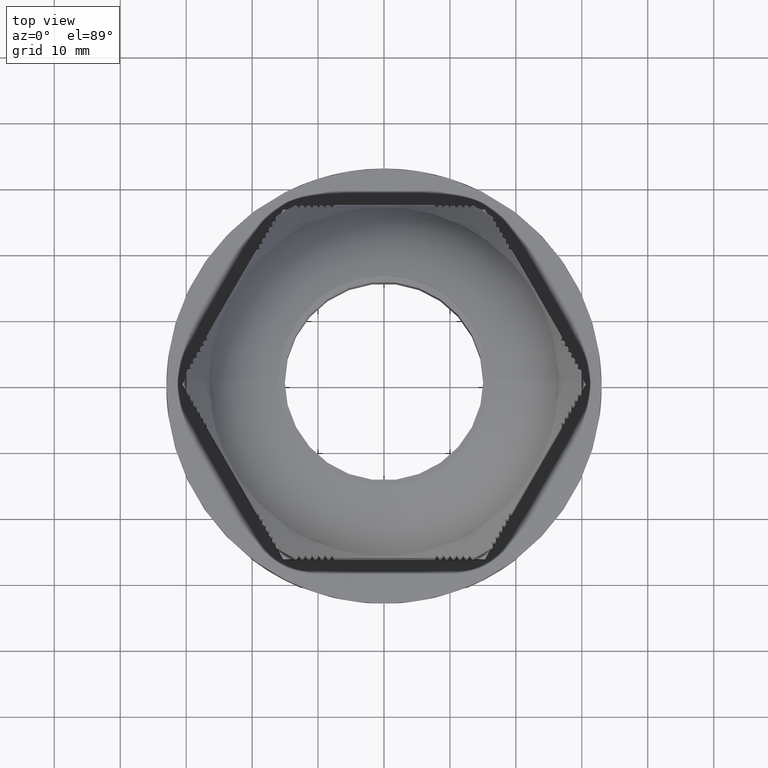
[diagram: clean part render]
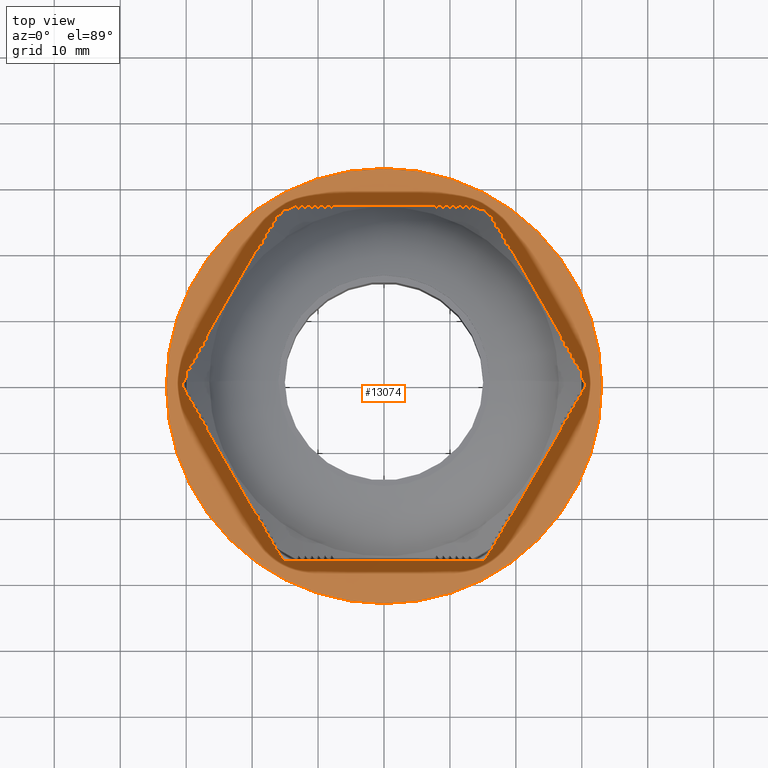
[diagram: same view with one face highlighted and labeled with its STEP entity id]
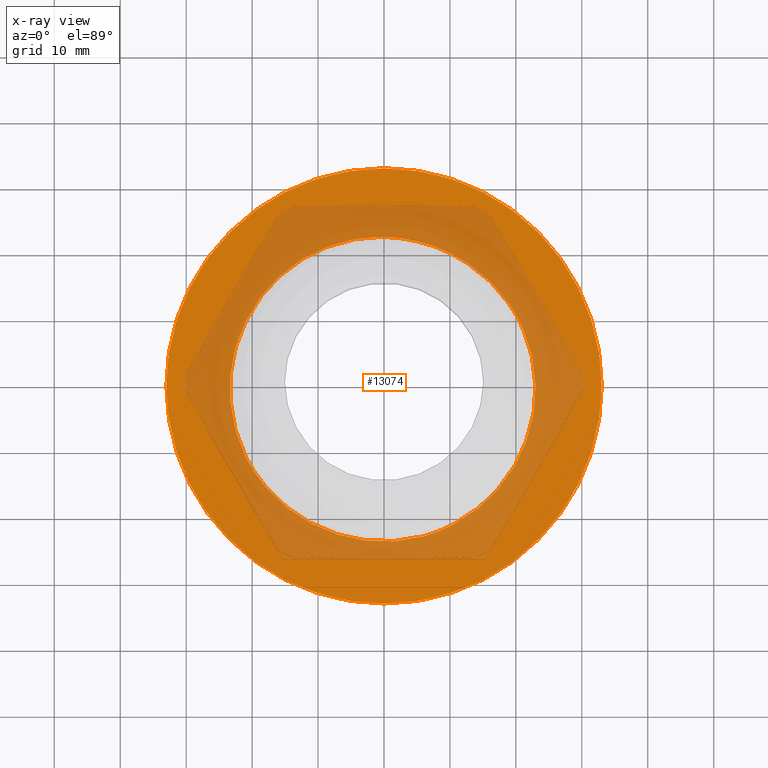
[diagram: x-ray of the same camera — body ghosted, the highlighted face saturated]
A machine part, top view. The second image highlights one B-rep face of the part: STEP entity #13074.
The next image is the same camera in x-ray: the body ghosted, the highlighted face saturated — about 47% of this face is hidden behind the body in this view.
In plain terms, the highlighted planar face has unit normal (0, 0, 1).
Its self-contained STEP definition (entity closure, byte-faithful):
#61 = EDGE_CURVE ( 'NONE', #1024, #7851, #20458, .T. ) ;
#69 = EDGE_CURVE ( 'NONE', #7851, #24904, #9485, .T. ) ;
#1024 = VERTEX_POINT ( 'NONE', #19559 ) ;
#3321 = DIRECTION ( 'NONE',  ( 1.000000000000000000, 0.0000000000000000000, 0.0000000000000000000 ) ) ;
#3349 = CARTESIAN_POINT ( 'NONE',  ( -3.469446951953614200E-015, 0.0000000000000000000, 12.51966510091093100 ) ) ;
#3351 = DIRECTION ( 'NONE',  ( -0.0000000000000000000, -0.0000000000000000000, -1.000000000000000000 ) ) ;
#3770 = VERTEX_POINT ( 'NONE', #16687 ) ;
#3778 = VERTEX_POINT ( 'NONE', #16644 ) ;
#6221 = FACE_OUTER_BOUND ( 'NONE', #20127, .T. ) ;
#6222 = FACE_BOUND ( 'NONE', #20113, .T. ) ;
#6223 = PLANE ( 'NONE',  #8928 ) ;
#6224 = CARTESIAN_POINT ( 'NONE',  ( 34.64101615137756300, 3.469446951953614200E-015, 12.51966510091093100 ) ) ;
#6225 = DIRECTION ( 'NONE',  ( 0.0000000000000000000, 0.0000000000000000000, 1.000000000000000000 ) ) ;
#6226 = DIRECTION ( 'NONE',  ( 1.000000000000000000, 0.0000000000000000000, -0.0000000000000000000 ) ) ;
#7822 = B_SPLINE_CURVE_WITH_KNOTS ( 'NONE', 3,
 ( #23539, #23534, #23542, #23519, #23558, #23535, #23521, #23522, #23525, #23538, #23562, #23604, #23585, #23592, #23577, #23591, #23596, #23578, #23583, #23566, #23581, #23605, #23597, #23579, #23611, #23563, #23601, #23593, #23580, #23576, #23582, #23607, #23594, #23618, #23588, #23606, #23600, #23586, #23612, #23595, #23589, #23584, #23587, #23575, #23569, #23603 ),
 .UNSPECIFIED., .F., .F.,
 ( 4, 2, 2, 2, 2, 2, 2, 2, 2, 2, 2, 2, 2, 2, 2, 2, 2, 2, 2, 2, 2, 2, 4 ),
 ( 1.734723475976806900E-018, 0.001655241441134451200, 0.003310482882268900700, 0.006620965764537789300, 0.009931448646806678400, 0.01158669008794112500, 0.01324193152907557500, 0.01655241441134447400, 0.01820765585247892400, 0.01986289729361337400, 0.02317338017588227100, 0.02482862161701672100, 0.02648386305815117100, 0.02979434594042006800, 0.03310482882268896800, 0.03476007026382341900, 0.03641531170495786900, 0.03972579458722677600, 0.04303627746949567600, 0.04634676035176458300, 0.04800200179289903400, 0.04965724323403349100, 0.05296772611630239800 ),
 .UNSPECIFIED. ) ;
#7823 = B_SPLINE_CURVE_WITH_KNOTS ( 'NONE', 3,
 ( #23647, #23631, #23661, #23667, #23658, #23630, #23632, #23640, #23644, #23645, #23653, #23660, #23662, #23663, #23664, #23718, #23690, #23709, #23703, #23686, #23716, #23700 ),
 .UNSPECIFIED., .F., .F.,
 ( 4, 2, 2, 2, 2, 2, 2, 2, 2, 2, 4 ),
 ( 0.0000000000000000000, 0.004003597394779144500, 0.008007194789558287300, 0.01000899348694786100, 0.01201079218433743200, 0.01601438957911658100, 0.01801618827650615700, 0.02001798697389573300, 0.02402158436867488400, 0.02802518176345403900, 0.03202877915823319100 ),
 .UNSPECIFIED. ) ;
#7851 = VERTEX_POINT ( 'NONE', #11117 ) ;
#8928 = AXIS2_PLACEMENT_3D ( 'NONE', #6224, #6225, #6226 ) ;
#9271 = AXIS2_PLACEMENT_3D ( 'NONE', #3349, #3351, #3321 ) ;
#9307 = CIRCLE ( 'NONE', #9271, 33.00000000000000000 ) ;
#9470 = AXIS2_PLACEMENT_3D ( 'NONE', #20734, #20745, #20735 ) ;
#9485 = CIRCLE ( 'NONE', #9470, 22.49999999999999300 ) ;
#11117 = CARTESIAN_POINT ( 'NONE',  ( 5.006511656376244600, 21.93592580755524000, 12.51966510091091900 ) ) ;
#13074 = ADVANCED_FACE ( 'NONE', ( #6221, #6222 ), #6223, .T. ) ;
#13343 = EDGE_CURVE ( 'NONE', #3778, #3770, #9307, .T. ) ;
#14101 = EDGE_CURVE ( 'NONE', #3770, #3778, #23839, .T. ) ;
#16644 = CARTESIAN_POINT ( 'NONE',  ( -33.00000000000000000, 4.041334437186266200E-015, 12.51966510091093100 ) ) ;
#16687 = CARTESIAN_POINT ( 'NONE',  ( 33.00000000000000000, 0.0000000000000000000, 12.51966510091093100 ) ) ;
#19044 = EDGE_CURVE ( 'NONE', #24904, #24890, #7822, .T. ) ;
#19088 = EDGE_CURVE ( 'NONE', #24890, #1024, #7823, .T. ) ;
#19559 = CARTESIAN_POINT ( 'NONE',  ( -20.91995311601898100, -10.92316628197005300, 12.51966510091091100 ) ) ;
#19875 = ORIENTED_EDGE ( 'NONE', *, *, #69, .T. ) ;
#19882 = ORIENTED_EDGE ( 'NONE', *, *, #14101, .F. ) ;
#19895 = ORIENTED_EDGE ( 'NONE', *, *, #19088, .T. ) ;
#19898 = ORIENTED_EDGE ( 'NONE', *, *, #13343, .F. ) ;
#19905 = ORIENTED_EDGE ( 'NONE', *, *, #19044, .T. ) ;
#19913 = ORIENTED_EDGE ( 'NONE', *, *, #61, .T. ) ;
#20113 = EDGE_LOOP ( 'NONE', ( #19905, #19895, #19913, #19875 ) ) ;
#20127 = EDGE_LOOP ( 'NONE', ( #19882, #19898 ) ) ;
#20458 = B_SPLINE_CURVE_WITH_KNOTS ( 'NONE', 3,
 ( #20654, #20655, #20678, #20657, #20656, #20659, #20664, #20660, #20668, #20661, #20669, #20726, #20684, #20703, #20708, #20691, #20695, #20732, #20717, #20679, #20724, #20699, #20687, #20723, #20680, #20702, #20689, #20685, #20707, #20727, #20711, #20729, #20709, #20716, #20712, #20720, #20714, #20718, #20728, #20686, #20704, #20730, #20719, #20698, #20690, #20683, #20696, #20721 ),
 .UNSPECIFIED., .F., .F.,
 ( 4, 2, 2, 2, 2, 2, 2, 2, 2, 2, 2, 2, 2, 2, 2, 2, 2, 2, 2, 2, 2, 2, 2, 4 ),
 ( 0.0000000000000000000, 0.001651043883610114600, 0.003302087767220229200, 0.006604175534440449700, 0.009906263301660668900, 0.01155730718527077900, 0.01320835106888089100, 0.01651043883610111100, 0.01816148271971122100, 0.01981252660332133400, 0.02146357048693144400, 0.02311461437054155800, 0.02641670213776178800, 0.02971878990498201900, 0.03136983378859213600, 0.03302087767220224900, 0.03632296543942246900, 0.03797400932303259000, 0.03962505320664270300, 0.04292714097386293000, 0.04457818485747304400, 0.04622922874108315700, 0.04953131650830338400, 0.05283340427552361800 ),
 .UNSPECIFIED. ) ;
#20654 = CARTESIAN_POINT ( 'NONE',  ( -20.91995311601898100, -10.92316628197005300, 12.51966510091091100 ) ) ;
#20655 = CARTESIAN_POINT ( 'NONE',  ( -21.16501843254311800, -10.42941967739668700, 12.51966510091094000 ) ) ;
#20656 = CARTESIAN_POINT ( 'NONE',  ( -22.00339065373413000, -8.392179990858529900, 12.51966510091093500 ) ) ;
#20657 = CARTESIAN_POINT ( 'NONE',  ( -21.81124777528322400, -8.910094753321155600, 12.51966510091093500 ) ) ;
#20659 = CARTESIAN_POINT ( 'NONE',  ( -22.52168478336069100, -6.829433564929733100, 12.51966510091093500 ) ) ;
#20660 = CARTESIAN_POINT ( 'NONE',  ( -23.18273760599827300, -3.635775415782162200, 12.51966510091092700 ) ) ;
#20661 = CARTESIAN_POINT ( 'NONE',  ( -23.37387027805064200, -0.9090945859610569700, 12.51966510091093600 ) ) ;
#20664 = CARTESIAN_POINT ( 'NONE',  ( -22.79121495030824100, -5.773807613476959600, 12.51966510091092700 ) ) ;
#20668 = CARTESIAN_POINT ( 'NONE',  ( -23.30472911401039600, -2.553368991522943200, 12.51966510091093500 ) ) ;
#20669 = CARTESIAN_POINT ( 'NONE',  ( -23.37774443857514900, -0.3563081667514374500, 12.51966510091092700 ) ) ;
#20678 = CARTESIAN_POINT ( 'NONE',  ( -21.39225885563227800, -9.928042535279924900, 12.51966510091093600 ) ) ;
#20679 = CARTESIAN_POINT ( 'NONE',  ( -21.50162299630017100, 8.680611820620995900, 12.51966510091092700 ) ) ;
#20680 = CARTESIAN_POINT ( 'NONE',  ( -19.10690660639358600, 12.98937818726520800, 12.51966510091093800 ) ) ;
#20683 = CARTESIAN_POINT ( 'NONE',  ( 2.859163853798885900, 22.39150220752364400, 12.51966510091093800 ) ) ;
#20684 = CARTESIAN_POINT ( 'NONE',  ( -23.31208333213302100, 1.283777991459060600, 12.51966510091093500 ) ) ;
#20685 = CARTESIAN_POINT ( 'NONE',  ( -15.84672664798605300, 16.64711209246868900, 12.51966510091092900 ) ) ;
#20686 = CARTESIAN_POINT ( 'NONE',  ( -4.226424154068036300, 22.31015737475004500, 12.51966510091093300 ) ) ;
#20687 = CARTESIAN_POINT ( 'NONE',  ( -20.54002440662919000, 10.66002730576811400, 12.51966510091093100 ) ) ;
#20689 = CARTESIAN_POINT ( 'NONE',  ( -17.03608454224000100, 15.50856144531607400, 12.51966510091093300 ) ) ;
#20690 = CARTESIAN_POINT ( 'NONE',  ( 0.6890393857571518500, 22.60999092086170500, 12.51966510091093600 ) ) ;
#20691 = CARTESIAN_POINT ( 'NONE',  ( -22.58093112299519600, 5.567777697251390400, 12.51966510091093500 ) ) ;
#20695 = CARTESIAN_POINT ( 'NONE',  ( -22.43278290316346400, 6.094136318135628700, 12.51966510091093300 ) ) ;
#20696 = CARTESIAN_POINT ( 'NONE',  ( 3.936719779571606900, 22.20412291663971500, 12.51966510091092200 ) ) ;
#20698 = CARTESIAN_POINT ( 'NONE',  ( -0.4035294788021956400, 22.64109698851979100, 12.51966510091092900 ) ) ;
#20699 = CARTESIAN_POINT ( 'NONE',  ( -20.79894294021794800, 10.17197574253740400, 12.51966510091093600 ) ) ;
#20702 = CARTESIAN_POINT ( 'NONE',  ( -17.76667613029327300, 14.70053344790704100, 12.51966510091093800 ) ) ;
#20703 = CARTESIAN_POINT ( 'NONE',  ( -23.15110401421588900, 2.908511338790595900, 12.51966510091093600 ) ) ;
#20704 = CARTESIAN_POINT ( 'NONE',  ( -3.688087459655623700, 22.39376688929912300, 12.51966510091092400 ) ) ;
#20707 = CARTESIAN_POINT ( 'NONE',  ( -15.43382093119064200, 17.01478582311891700, 12.51966510091092900 ) ) ;
#20708 = CARTESIAN_POINT ( 'NONE',  ( -22.96842852424909900, 3.979529395540836800, 12.51966510091093800 ) ) ;
#20709 = CARTESIAN_POINT ( 'NONE',  ( -11.90121312777639200, 19.56237447828131700, 12.51966510091092400 ) ) ;
#20711 = CARTESIAN_POINT ( 'NONE',  ( -14.15729777065359100, 18.04626240528122600, 12.51966510091092700 ) ) ;
#20712 = CARTESIAN_POINT ( 'NONE',  ( -9.952981821335312100, 20.54884689304261900, 12.51966510091093800 ) ) ;
#20714 = CARTESIAN_POINT ( 'NONE',  ( -8.428161225953047600, 21.18245729965978800, 12.51966510091093300 ) ) ;
#20716 = CARTESIAN_POINT ( 'NONE',  ( -10.44787604814735400, 20.31460498687393100, 12.51966510091092700 ) ) ;
#20717 = CARTESIAN_POINT ( 'NONE',  ( -21.91052031537674000, 7.660209076144314900, 12.51966510091093300 ) ) ;
#20718 = CARTESIAN_POINT ( 'NONE',  ( -6.878752236222279500, 21.72006520593696900, 12.51966510091093300 ) ) ;
#20719 = CARTESIAN_POINT ( 'NONE',  ( -2.053982528976102500, 22.56701151973895500, 12.51966510091092600 ) ) ;
#20720 = CARTESIAN_POINT ( 'NONE',  ( -8.941734378404012400, 20.98344005617307700, 12.51966510091094000 ) ) ;
#20721 = CARTESIAN_POINT ( 'NONE',  ( 5.006511656376244600, 21.93592580755524000, 12.51966510091091900 ) ) ;
#20723 = CARTESIAN_POINT ( 'NONE',  ( -19.71700306462917500, 12.08661068937035000, 12.51966510091093300 ) ) ;
#20724 = CARTESIAN_POINT ( 'NONE',  ( -21.27931168168391500, 9.182966981371556900, 12.51966510091093100 ) ) ;
#20726 = CARTESIAN_POINT ( 'NONE',  ( -23.34683541642803900, 0.7391547661895639900, 12.51966510091092900 ) ) ;
#20727 = CARTESIAN_POINT ( 'NONE',  ( -14.58986254996069800, 17.71358224508329500, 12.51966510091092600 ) ) ;
#20728 = CARTESIAN_POINT ( 'NONE',  ( -5.828318544185194100, 22.00199274244264200, 12.51966510091093300 ) ) ;
#20729 = CARTESIAN_POINT ( 'NONE',  ( -12.82846468743851200, 18.99512478720658800, 12.51966510091092900 ) ) ;
#20730 = CARTESIAN_POINT ( 'NONE',  ( -2.602534100805419900, 22.52216656329410000, 12.51966510091092200 ) ) ;
#20732 = CARTESIAN_POINT ( 'NONE',  ( -22.09757975201785400, 7.140586894026970600, 12.51966510091093600 ) ) ;
#20734 = CARTESIAN_POINT ( 'NONE',  ( 0.0000000000000000000, 0.0000000000000000000, 12.51966510091092400 ) ) ;
#20735 = DIRECTION ( 'NONE',  ( -1.000000000000000000, 0.0000000000000000000, 0.0000000000000000000 ) ) ;
#20745 = DIRECTION ( 'NONE',  ( -0.0000000000000000000, -0.0000000000000000000, -1.000000000000000000 ) ) ;
#22469 = DIRECTION ( 'NONE',  ( -0.0000000000000000000, -0.0000000000000000000, -1.000000000000000000 ) ) ;
#22478 = DIRECTION ( 'NONE',  ( 1.000000000000000000, 0.0000000000000000000, 0.0000000000000000000 ) ) ;
#22484 = CARTESIAN_POINT ( 'NONE',  ( -3.469446951953614200E-015, 0.0000000000000000000, 12.51966510091093100 ) ) ;
#23519 = CARTESIAN_POINT ( 'NONE',  ( 14.54739547646328100, 17.23635035034149600, 12.51966510091092200 ) ) ;
#23521 = CARTESIAN_POINT ( 'NONE',  ( 16.96511267424211800, 14.99950234792163800, 12.51966510091093300 ) ) ;
#23522 = CARTESIAN_POINT ( 'NONE',  ( 18.36376534219128200, 13.32794454795145400, 12.51966510091093100 ) ) ;
#23525 = CARTESIAN_POINT ( 'NONE',  ( 19.00306200539748100, 12.44124274436883600, 12.51966510091092700 ) ) ;
#23534 = CARTESIAN_POINT ( 'NONE',  ( 13.22226230982149700, 18.22824976888136200, 12.51966510091134800 ) ) ;
#23535 = CARTESIAN_POINT ( 'NONE',  ( 16.20575881335608100, 15.78436016293358400, 12.51966510091093800 ) ) ;
#23538 = CARTESIAN_POINT ( 'NONE',  ( 19.87044377984312500, 11.03351736506594200, 12.51966510091092700 ) ) ;
#23539 = CARTESIAN_POINT ( 'NONE',  ( 12.76031973598576700, 18.53170904788362000, 12.51966510091106800 ) ) ;
#23542 = CARTESIAN_POINT ( 'NONE',  ( 13.67204240338122500, 17.90845451658352900, 12.51966510091092400 ) ) ;
#23558 = CARTESIAN_POINT ( 'NONE',  ( 14.97403515310608500, 16.88301593565912000, 12.51966510091093800 ) ) ;
#23562 = CARTESIAN_POINT ( 'NONE',  ( 20.14313385638681100, 10.55260085058304000, 12.51966510091092900 ) ) ;
#23563 = CARTESIAN_POINT ( 'NONE',  ( 22.47436424907717300, -5.364136294113079900, 12.51966510091093800 ) ) ;
#23566 = CARTESIAN_POINT ( 'NONE',  ( 22.93899552234847800, 1.177145581870320000, 12.51966510091093600 ) ) ;
#23569 = CARTESIAN_POINT ( 'NONE',  ( 7.070093453501276500, -22.51991465150806300, 12.51966510091092200 ) ) ;
#23575 = CARTESIAN_POINT ( 'NONE',  ( 8.105899174481411500, -22.14515816550710200, 12.51966510091093800 ) ) ;
#23576 = CARTESIAN_POINT ( 'NONE',  ( 20.43761395002386300, -11.00652624669416800, 12.51966510091093600 ) ) ;
#23577 = CARTESIAN_POINT ( 'NONE',  ( 21.89285499602455300, 6.555348568386904200, 12.51966510091093100 ) ) ;
#23578 = CARTESIAN_POINT ( 'NONE',  ( 22.65788685535817100, 3.348179820420932500, 12.51966510091092400 ) ) ;
#23579 = CARTESIAN_POINT ( 'NONE',  ( 22.81799005381229500, -3.187839809182407200, 12.51966510091093600 ) ) ;
#23580 = CARTESIAN_POINT ( 'NONE',  ( 21.15549100156874800, -9.518103418367406500, 12.51966510091093600 ) ) ;
#23581 = CARTESIAN_POINT ( 'NONE',  ( 22.99086099009796800, 0.08865362759644747300, 12.51966510091094000 ) ) ;
#23582 = CARTESIAN_POINT ( 'NONE',  ( 20.17959899202149600, -11.49579305679257500, 12.51966510091093300 ) ) ;
#23583 = CARTESIAN_POINT ( 'NONE',  ( 22.74293794656695400, 2.805916813265398000, 12.51966510091093300 ) ) ;
#23584 = CARTESIAN_POINT ( 'NONE',  ( 10.11503370266393500, -21.23135451893120200, 12.51966510091093100 ) ) ;
#23585 = CARTESIAN_POINT ( 'NONE',  ( 20.88386018889044100, 9.086324269501806900, 12.51966510091093300 ) ) ;
#23586 = CARTESIAN_POINT ( 'NONE',  ( 13.82459514063378400, -18.93685497989529800, 12.51966510091094200 ) ) ;
#23587 = CARTESIAN_POINT ( 'NONE',  ( 9.618922044689705700, -21.47314080819150900, 12.51966510091093300 ) ) ;
#23588 = CARTESIAN_POINT ( 'NONE',  ( 17.76283299711004200, -15.12848903444316300, 12.51966510091092900 ) ) ;
#23589 = CARTESIAN_POINT ( 'NONE',  ( 11.08293012090078400, -20.71694630694070200, 12.51966510091092700 ) ) ;
#23591 = CARTESIAN_POINT ( 'NONE',  ( 22.32236924586827300, 4.968779300655683100, 12.51966510091093300 ) ) ;
#23592 = CARTESIAN_POINT ( 'NONE',  ( 21.53284085553967500, 7.584585271473907000, 12.51966510091093300 ) ) ;
#23593 = CARTESIAN_POINT ( 'NONE',  ( 21.55841196815703500, -8.502334610868773600, 12.51966510091093600 ) ) ;
#23594 = CARTESIAN_POINT ( 'NONE',  ( 19.34513975621011600, -12.91112184942028700, 12.51966510091093800 ) ) ;
#23595 = CARTESIAN_POINT ( 'NONE',  ( 11.55596186427387900, -20.44378318642103000, 12.51966510091092000 ) ) ;
#23596 = CARTESIAN_POINT ( 'NONE',  ( 22.44732256139929300, 4.431348639502272300, 12.51966510091092700 ) ) ;
#23597 = CARTESIAN_POINT ( 'NONE',  ( 22.92120264862652200, -2.094146168720015100, 12.51966510091093500 ) ) ;
#23600 = CARTESIAN_POINT ( 'NONE',  ( 15.50146946927382900, -17.52952005701876500, 12.51966510091093800 ) ) ;
#23601 = CARTESIAN_POINT ( 'NONE',  ( 22.21785067079527900, -6.425351694051941300, 12.51966510091093500 ) ) ;
#23603 = CARTESIAN_POINT ( 'NONE',  ( 6.007584884452128900, -22.82255296534771500, 12.51966510091091900 ) ) ;
#23604 = CARTESIAN_POINT ( 'NONE',  ( 20.64930330369707100, 9.579857502046655400, 12.51966510091092900 ) ) ;
#23605 = CARTESIAN_POINT ( 'NONE',  ( 22.95310600898612900, -1.547960231748611400, 12.51966510091093500 ) ) ;
#23606 = CARTESIAN_POINT ( 'NONE',  ( 16.30027012040944700, -16.75704445009363800, 12.51966510091092900 ) ) ;
#23607 = CARTESIAN_POINT ( 'NONE',  ( 19.63381344359871500, -12.44711839634353000, 12.51966510091093300 ) ) ;
#23611 = CARTESIAN_POINT ( 'NONE',  ( 22.74626333616116700, -3.737276608038589700, 12.51966510091093500 ) ) ;
#23612 = CARTESIAN_POINT ( 'NONE',  ( 12.94282987831900800, -19.57718016908646100, 12.51966510091092700 ) ) ;
#23618 = CARTESIAN_POINT ( 'NONE',  ( 18.43257810480469100, -14.26874720132257900, 12.51966510091093500 ) ) ;
#23630 = CARTESIAN_POINT ( 'NONE',  ( -2.542010587041460700, -23.47191992627287100, 12.51966510091093100 ) ) ;
#23631 = CARTESIAN_POINT ( 'NONE',  ( 4.716852485557750700, -23.16231269605111700, 12.51966510091091700 ) ) ;
#23632 = CARTESIAN_POINT ( 'NONE',  ( -3.195878125026371900, -23.39194200834294800, 12.51966510091093100 ) ) ;
#23640 = CARTESIAN_POINT ( 'NONE',  ( -4.499691405769399700, -23.17648301974539700, 12.51966510091093500 ) ) ;
#23644 = CARTESIAN_POINT ( 'NONE',  ( -5.151297878029694700, -23.04057652255056600, 12.51966510091092700 ) ) ;
#23645 = CARTESIAN_POINT ( 'NONE',  ( -7.089126839873432400, -22.54951054739313000, 12.51966510091093100 ) ) ;
#23647 = CARTESIAN_POINT ( 'NONE',  ( 6.007584884452128900, -22.82255296534771500, 12.51966510091091900 ) ) ;
#23653 = CARTESIAN_POINT ( 'NONE',  ( -8.335980754369245500, -22.11792842446019900, 12.51966510091092900 ) ) ;
#23658 = CARTESIAN_POINT ( 'NONE',  ( -0.5746008114403229300, -23.62966790514581900, 12.51966510091093100 ) ) ;
#23660 = CARTESIAN_POINT ( 'NONE',  ( -10.14125398369168400, -21.32012666167692000, 12.51966510091093100 ) ) ;
#23661 = CARTESIAN_POINT ( 'NONE',  ( 3.399313143282608300, -23.39188085749983900, 12.51966510091093500 ) ) ;
#23662 = CARTESIAN_POINT ( 'NONE',  ( -10.73211748981879800, -21.02898332658669700, 12.51966510091093100 ) ) ;
#23663 = CARTESIAN_POINT ( 'NONE',  ( -11.89177966061988400, -20.39563830990348900, 12.51966510091092900 ) ) ;
#23664 = CARTESIAN_POINT ( 'NONE',  ( -12.46183653374721200, -20.05260206207673000, 12.51966510091093500 ) ) ;
#23667 = CARTESIAN_POINT ( 'NONE',  ( 0.7447062811295109800, -23.62585093604901200, 12.51966510091093500 ) ) ;
#23686 = CARTESIAN_POINT ( 'NONE',  ( -19.58936057523386500, -13.22862206935464400, 12.51966510091092600 ) ) ;
#23690 = CARTESIAN_POINT ( 'NONE',  ( -15.16446101826704600, -18.13092446488082700, 12.51966510091093100 ) ) ;
#23700 = CARTESIAN_POINT ( 'NONE',  ( -20.91995311601898100, -10.92316628197005300, 12.51966510091091100 ) ) ;
#23703 = CARTESIAN_POINT ( 'NONE',  ( -17.97386686683203300, -15.35185980439313600, 12.51966510091092700 ) ) ;
#23709 = CARTESIAN_POINT ( 'NONE',  ( -17.08594560222439500, -16.33284307166340800, 12.51966510091092600 ) ) ;
#23716 = CARTESIAN_POINT ( 'NONE',  ( -20.30219205133633100, -12.10629690329866500, 12.51966510091091300 ) ) ;
#23718 = CARTESIAN_POINT ( 'NONE',  ( -14.12963094620709500, -18.94968090336483300, 12.51966510091093800 ) ) ;
#23805 = AXIS2_PLACEMENT_3D ( 'NONE', #22484, #22469, #22478 ) ;
#23839 = CIRCLE ( 'NONE', #23805, 33.00000000000000000 ) ;
#24778 = CARTESIAN_POINT ( 'NONE',  ( 12.76031973598576700, 18.53170904788362000, 12.51966510091106800 ) ) ;
#24785 = CARTESIAN_POINT ( 'NONE',  ( 6.007584884452128900, -22.82255296534771500, 12.51966510091091900 ) ) ;
#24890 = VERTEX_POINT ( 'NONE', #24785 ) ;
#24904 = VERTEX_POINT ( 'NONE', #24778 ) ;